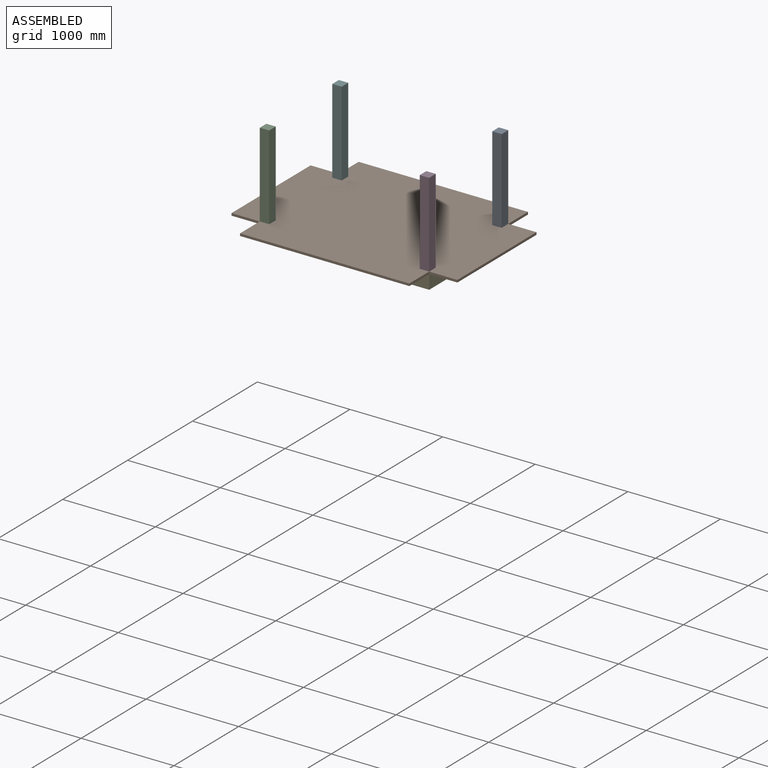
[diagram: assembled view]
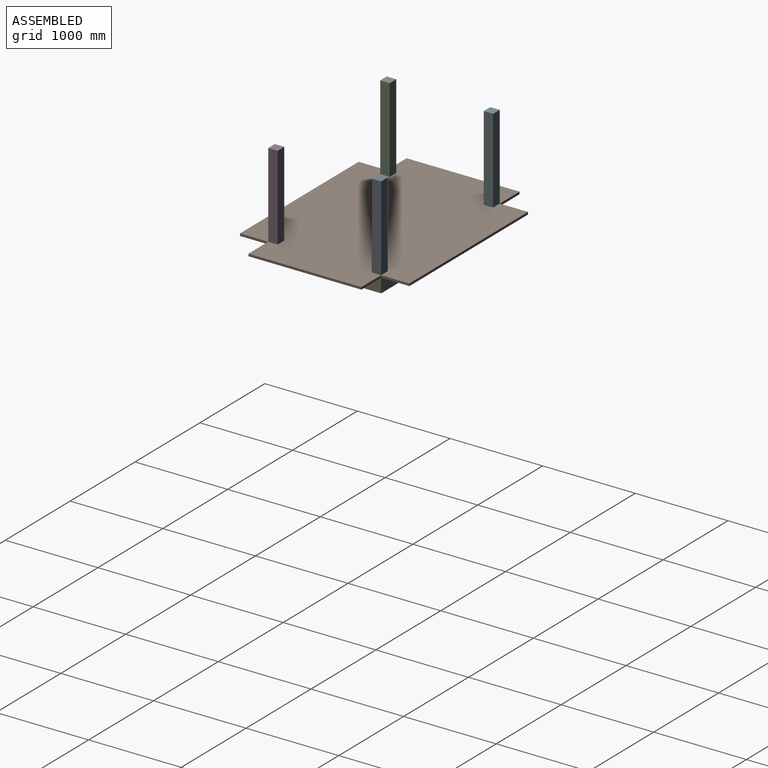
[diagram: assembled view, second angle]
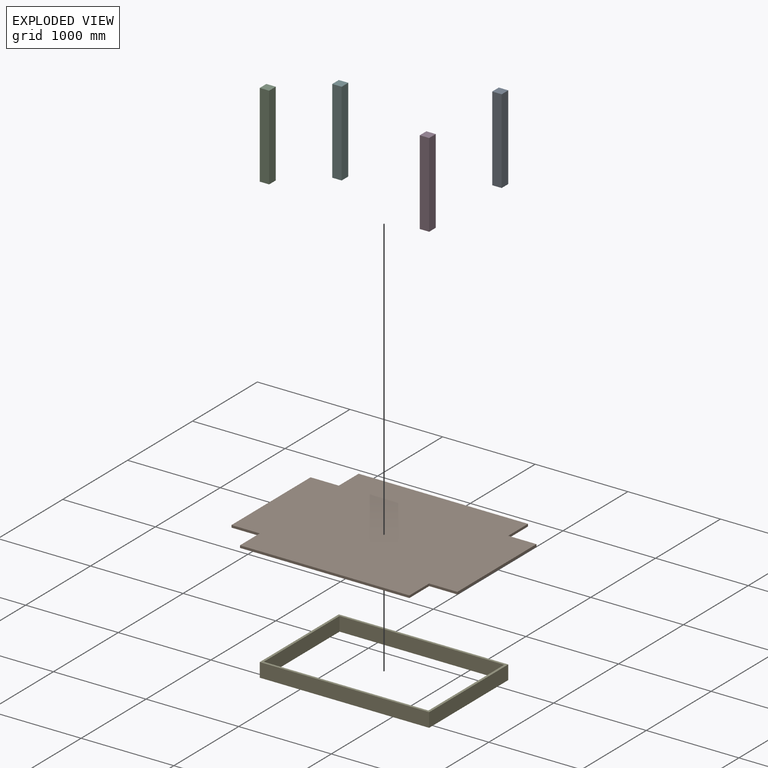
[diagram: exploded view]
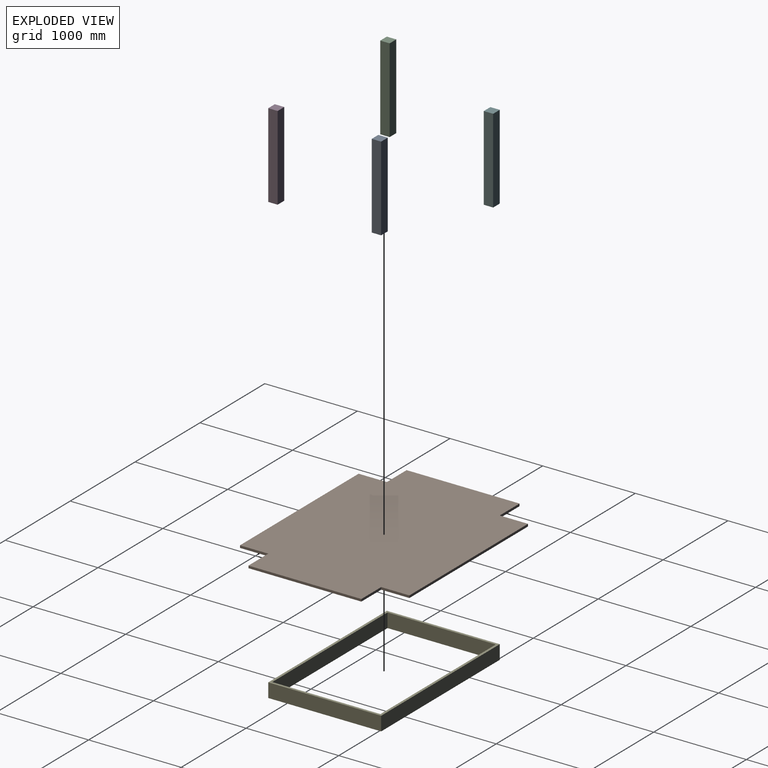
[diagram: exploded view, second angle]
ASSEMBLY  parts=6 mates=5
PART A: 6 faces, bbox 101.6x101.6x914.4 mm
  f0: plane 914.4x101.6mm, normal (0,1,0), area 92903mm2, adj f1,f3,f4,f5
  f1: plane 914.4x101.6mm, normal (-1,0,0), area 92903mm2, adj f0,f2,f4,f5
  f2: plane 914.4x101.6mm, normal (0,-1,0), area 92903mm2, adj f1,f3,f4,f5
  f3: plane 914.4x101.6mm, normal (1,0,0), area 92903mm2, adj f0,f2,f4,f5
  f4: plane 101.6x101.6mm, normal (0,0,1), area 10322.6mm2, adj f0,f1,f2,f3
  f5: plane 101.6x101.6mm, normal (0,0,-1), area 10322.6mm2, adj f0,f1,f2,f3
PART B: 14 faces, bbox 2438.4x1828.8x25.4 mm
  f0: plane 1219.2x25.4mm, normal (1,0,0), area 30967.7mm2, adj f1,f11,f12,f13
  f1: plane 304.8x25.4mm, normal (0,1,0), area 7741.9mm2, adj f0,f2,f12,f13
  f2: plane 304.8x25.4mm, normal (1,0,0), area 7741.9mm2, adj f1,f3,f12,f13
  f3: plane 1828.8x25.4mm, normal (0,1,0), area 46451.5mm2, adj f2,f4,f12,f13
  f4: plane 304.8x25.4mm, normal (-1,0,0), area 7741.9mm2, adj f3,f5,f12,f13
  f5: plane 304.8x25.4mm, normal (0,1,0), area 7741.9mm2, adj f4,f6,f12,f13
  f6: plane 1219.2x25.4mm, normal (-1,0,0), area 30967.7mm2, adj f5,f7,f12,f13
  f7: plane 304.8x25.4mm, normal (0,-1,0), area 7741.9mm2, adj f6,f8,f12,f13
  f8: plane 304.8x25.4mm, normal (-1,0,0), area 7741.9mm2, adj f7,f9,f12,f13
  f9: plane 1828.8x25.4mm, normal (0,-1,0), area 46451.5mm2, adj f8,f10,f12,f13
  f10: plane 304.8x25.4mm, normal (1,0,0), area 7741.9mm2, adj f9,f11,f12,f13
  f11: plane 304.8x25.4mm, normal (0,-1,0), area 7741.9mm2, adj f0,f10,f12,f13
  f12: plane 2438.4x1828.8mm, normal (0,0,1), area 4087733.8mm2, adj f0,f1,f2,f3,f4,f5,f6,f7
  f13: plane 2438.4x1828.8mm, normal (0,0,-1), area 4087733.8mm2, adj f0,f1,f2,f3,f4,f5,f6,f7
PART C: 6 faces, bbox 101.6x101.6x914.4 mm
  f0: plane 914.4x101.6mm, normal (0,-1,0), area 92903mm2, adj f1,f3,f4,f5
  f1: plane 914.4x101.6mm, normal (1,0,0), area 92903mm2, adj f0,f2,f4,f5
  f2: plane 914.4x101.6mm, normal (0,1,0), area 92903mm2, adj f1,f3,f4,f5
  f3: plane 914.4x101.6mm, normal (-1,0,0), area 92903mm2, adj f0,f2,f4,f5
  f4: plane 101.6x101.6mm, normal (0,0,1), area 10322.6mm2, adj f0,f1,f2,f3
  f5: plane 101.6x101.6mm, normal (0,0,-1), area 10322.6mm2, adj f0,f1,f2,f3
PART D: 6 faces, bbox 101.6x101.6x914.4 mm
  f0: plane 914.4x101.6mm, normal (1,0,0), area 92903mm2, adj f1,f3,f4,f5
  f1: plane 914.4x101.6mm, normal (0,1,0), area 92903mm2, adj f0,f2,f4,f5
  f2: plane 914.4x101.6mm, normal (-1,0,0), area 92903mm2, adj f1,f3,f4,f5
  f3: plane 914.4x101.6mm, normal (0,-1,0), area 92903mm2, adj f0,f2,f4,f5
  f4: plane 101.6x101.6mm, normal (0,0,1), area 10322.6mm2, adj f0,f1,f2,f3
  f5: plane 101.6x101.6mm, normal (0,0,-1), area 10322.6mm2, adj f0,f1,f2,f3
PART E: 10 faces, bbox 1828.8x1219.2x152.4 mm
  f0: plane 1168.4x152.4mm, normal (1,0,0), area 178064.2mm2, adj f1,f7,f8,f9
  f1: plane 1778x152.4mm, normal (0,-1,0), area 270967.2mm2, adj f0,f2,f8,f9
  f2: plane 1168.4x152.4mm, normal (-1,0,0), area 178064.2mm2, adj f1,f7,f8,f9
  f3: plane 1219.2x152.4mm, normal (1,0,0), area 185806.1mm2, adj f4,f6,f8,f9
  f4: plane 1828.8x152.4mm, normal (0,1,0), area 278709.1mm2, adj f3,f5,f8,f9
  f5: plane 1219.2x152.4mm, normal (-1,0,0), area 185806.1mm2, adj f4,f6,f8,f9
  f6: plane 1828.8x152.4mm, normal (0,-1,0), area 278709.1mm2, adj f3,f5,f8,f9
  f7: plane 1778x152.4mm, normal (0,1,0), area 270967.2mm2, adj f0,f2,f8,f9
  f8: plane 1828.8x1219.2mm, normal (0,0,1), area 152257.8mm2, adj f0,f1,f2,f3,f4,f5,f6,f7
  f9: plane 1828.8x1219.2mm, normal (0,0,-1), area 152257.8mm2, adj f0,f1,f2,f3,f4,f5,f6,f7
PART F: 6 faces, bbox 101.6x101.6x914.4 mm
  f0: plane 914.4x101.6mm, normal (0,1,0), area 92903mm2, adj f1,f3,f4,f5
  f1: plane 914.4x101.6mm, normal (-1,0,0), area 92903mm2, adj f0,f2,f4,f5
  f2: plane 914.4x101.6mm, normal (0,-1,0), area 92903mm2, adj f1,f3,f4,f5
  f3: plane 914.4x101.6mm, normal (1,0,0), area 92903mm2, adj f0,f2,f4,f5
  f4: plane 101.6x101.6mm, normal (0,0,1), area 10322.6mm2, adj f0,f1,f2,f3
  f5: plane 101.6x101.6mm, normal (0,0,-1), area 10322.6mm2, adj f0,f1,f2,f3
PLACE A t=(-458.54,-532.2,-986.94)mm
PLACE B t=(-458.54,-532.2,-1012.34)mm
PLACE C t=(-458.54,-532.2,-986.94)mm
PLACE D t=(-458.54,-532.2,-986.94)mm
PLACE E t=(-458.54,-532.2,-1164.74)mm
PLACE F t=(-458.54,-532.2,-986.94)mm
MATE fastened A.f5 <-> B.f12  axis (0,0,1) through (455.86,77.4,-986.94)mm
MATE fastened F.f5 <-> B.f12  axis (0,0,1) through (-1372.94,77.4,-986.94)mm
MATE fastened C.f5 <-> B.f12  axis (0,0,1) through (-1372.94,-1141.8,-986.94)mm
MATE fastened D.f5 <-> B.f12  axis (0,0,1) through (455.86,-1141.8,-986.94)mm
MATE fastened E.f8 <-> B.f13  axis (0,0,1) through (-458.54,-532.2,-1012.34)mm
